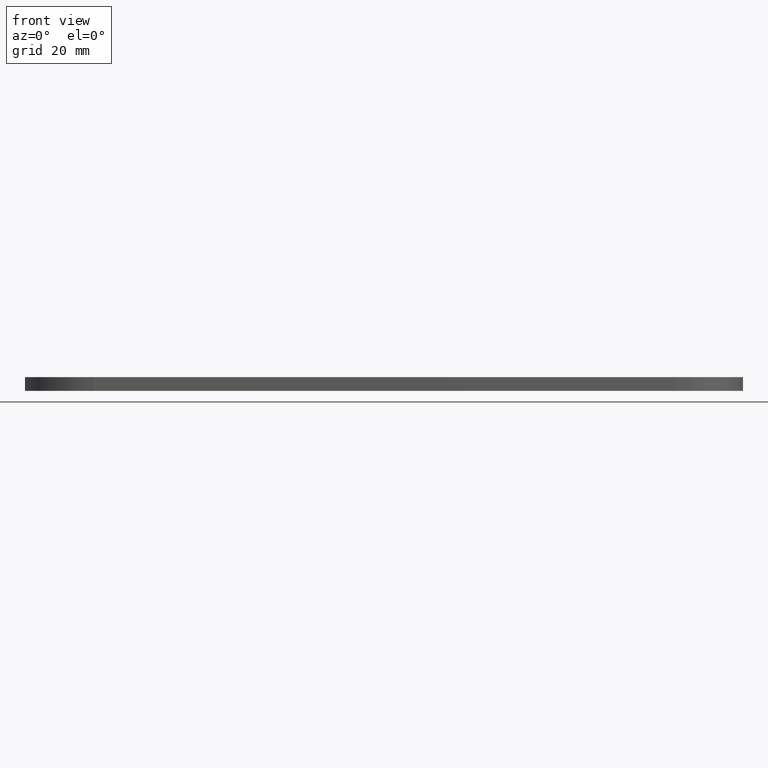
[diagram: clean part render]
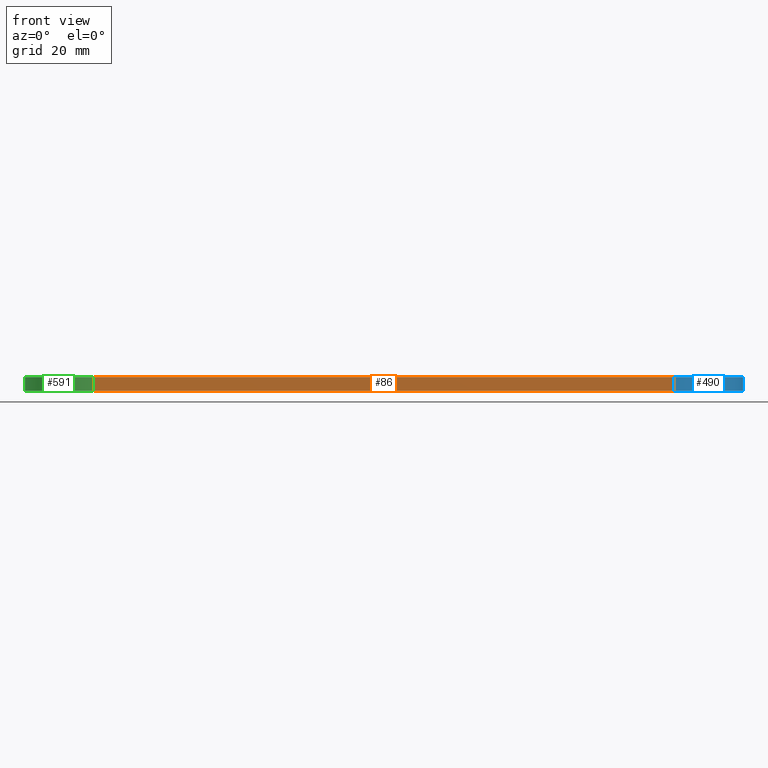
[diagram: same view with three faces highlighted in distinct colors, each labeled with its STEP entity id]
A machine part, front view with three faces highlighted in distinct colors.
Their STEP definitions:

[orange] entity #86 — the highlighted planar face has unit normal (0, -1, 0).
#8 = VECTOR ( 'NONE', #13, 1000.000000000000000 ) ;
#9 = LINE ( 'NONE', #656, #22 ) ;
#13 = DIRECTION ( 'NONE',  ( 1.000000000000000000, 1.817329355785226926E-16, 0.000000000000000000 ) ) ;
#22 = VECTOR ( 'NONE', #205, 1000.000000000000000 ) ;
#68 = CARTESIAN_POINT ( 'NONE',  ( -104.9999999999999858, -25.00000000000004263, 0.000000000000000000 ) ) ;
#86 = ADVANCED_FACE ( 'NONE', ( #230 ), #98, .T. ) ;
#98 = PLANE ( 'NONE',  #527 ) ;
#105 = ORIENTED_EDGE ( 'NONE', *, *, #502, .F. ) ;
#109 = VECTOR ( 'NONE', #182, 1000.000000000000000 ) ;
#166 = CARTESIAN_POINT ( 'NONE',  ( -104.9999999999999858, -25.00000000000004263, -5.000000000000000000 ) ) ;
#167 = VERTEX_POINT ( 'NONE', #166 ) ;
#170 = DIRECTION ( 'NONE',  ( 1.817329355785226926E-16, -1.000000000000000000, 0.000000000000000000 ) ) ;
#175 = ORIENTED_EDGE ( 'NONE', *, *, #790, .T. ) ;
#182 = DIRECTION ( 'NONE',  ( 0.000000000000000000, 0.000000000000000000, 1.000000000000000000 ) ) ;
#205 = DIRECTION ( 'NONE',  ( 0.000000000000000000, 0.000000000000000000, 1.000000000000000000 ) ) ;
#208 = LINE ( 'NONE', #533, #241 ) ;
#230 = FACE_OUTER_BOUND ( 'NONE', #471, .T. ) ;
#241 = VECTOR ( 'NONE', #473, 1000.000000000000000 ) ;
#305 = LINE ( 'NONE', #633, #109 ) ;
#307 = ORIENTED_EDGE ( 'NONE', *, *, #753, .F. ) ;
#315 = CARTESIAN_POINT ( 'NONE',  ( 104.9999999999999858, -25.00000000000000355, 0.000000000000000000 ) ) ;
#437 = EDGE_CURVE ( 'NONE', #706, #675, #9, .T. ) ;
#444 = CARTESIAN_POINT ( 'NONE',  ( 104.9999999999999858, -25.00000000000000355, -5.000000000000000000 ) ) ;
#448 = VERTEX_POINT ( 'NONE', #68 ) ;
#471 = EDGE_LOOP ( 'NONE', ( #105, #307, #175, #524 ) ) ;
#473 = DIRECTION ( 'NONE',  ( 1.000000000000000000, 1.817329355785226926E-16, 0.000000000000000000 ) ) ;
#502 = EDGE_CURVE ( 'NONE', #448, #675, #208, .T. ) ;
#524 = ORIENTED_EDGE ( 'NONE', *, *, #437, .T. ) ;
#527 = AXIS2_PLACEMENT_3D ( 'NONE', #622, #170, #810 ) ;
#533 = CARTESIAN_POINT ( 'NONE',  ( -104.9999999999999858, -25.00000000000004263, 0.000000000000000000 ) ) ;
#622 = CARTESIAN_POINT ( 'NONE',  ( -104.9999999999999858, -25.00000000000004263, -5.000000000000000000 ) ) ;
#633 = CARTESIAN_POINT ( 'NONE',  ( -104.9999999999999858, -25.00000000000004263, -5.000000000000000000 ) ) ;
#645 = LINE ( 'NONE', #725, #8 ) ;
#656 = CARTESIAN_POINT ( 'NONE',  ( 104.9999999999999858, -25.00000000000000355, -5.000000000000000000 ) ) ;
#675 = VERTEX_POINT ( 'NONE', #315 ) ;
#706 = VERTEX_POINT ( 'NONE', #444 ) ;
#725 = CARTESIAN_POINT ( 'NONE',  ( -104.9999999999999858, -25.00000000000004263, -5.000000000000000000 ) ) ;
#753 = EDGE_CURVE ( 'NONE', #167, #448, #305, .T. ) ;
#790 = EDGE_CURVE ( 'NONE', #167, #706, #645, .T. ) ;
#810 = DIRECTION ( 'NONE',  ( 1.000000000000000000, 1.817329355785226926E-16, 0.000000000000000000 ) ) ;

[blue] entity #490 — the highlighted cylindrical surface (partial cylindrical patch) has radius 25 mm, axis along (0, 0, 1).
#9 = LINE ( 'NONE', #656, #22 ) ;
#14 = FACE_OUTER_BOUND ( 'NONE', #701, .T. ) ;
#15 = ORIENTED_EDGE ( 'NONE', *, *, #465, .T. ) ;
#22 = VECTOR ( 'NONE', #205, 1000.000000000000000 ) ;
#54 = DIRECTION ( 'NONE',  ( 0.000000000000000000, 0.000000000000000000, 1.000000000000000000 ) ) ;
#56 = CARTESIAN_POINT ( 'NONE',  ( 104.9999999999999858, 3.857637417314161584E-14, 0.000000000000000000 ) ) ;
#70 = VERTEX_POINT ( 'NONE', #752 ) ;
#148 = CARTESIAN_POINT ( 'NONE',  ( 104.9999999999999858, 3.857637417314161584E-14, -5.000000000000000000 ) ) ;
#152 = AXIS2_PLACEMENT_3D ( 'NONE', #148, #202, #531 ) ;
#202 = DIRECTION ( 'NONE',  ( 0.000000000000000000, 0.000000000000000000, 1.000000000000000000 ) ) ;
#205 = DIRECTION ( 'NONE',  ( 0.000000000000000000, 0.000000000000000000, 1.000000000000000000 ) ) ;
#248 = DIRECTION ( 'NONE',  ( 0.000000000000000000, 0.000000000000000000, 1.000000000000000000 ) ) ;
#263 = ORIENTED_EDGE ( 'NONE', *, *, #290, .T. ) ;
#275 = CARTESIAN_POINT ( 'NONE',  ( 104.9999999999999858, 3.857637417314161584E-14, -5.000000000000000000 ) ) ;
#290 = EDGE_CURVE ( 'NONE', #436, #70, #450, .T. ) ;
#315 = CARTESIAN_POINT ( 'NONE',  ( 104.9999999999999858, -25.00000000000000355, 0.000000000000000000 ) ) ;
#318 = ORIENTED_EDGE ( 'NONE', *, *, #345, .F. ) ;
#324 = ORIENTED_EDGE ( 'NONE', *, *, #437, .F. ) ;
#333 = CIRCLE ( 'NONE', #809, 25.00000000000004974 ) ;
#345 = EDGE_CURVE ( 'NONE', #675, #70, #333, .T. ) ;
#347 = CIRCLE ( 'NONE', #152, 25.00000000000004974 ) ;
#381 = CARTESIAN_POINT ( 'NONE',  ( 130.0000000000000284, 3.857637417314161584E-14, -5.000000000000000000 ) ) ;
#401 = DIRECTION ( 'NONE',  ( 0.000000000000000000, 0.000000000000000000, 1.000000000000000000 ) ) ;
#436 = VERTEX_POINT ( 'NONE', #719 ) ;
#437 = EDGE_CURVE ( 'NONE', #706, #675, #9, .T. ) ;
#444 = CARTESIAN_POINT ( 'NONE',  ( 104.9999999999999858, -25.00000000000000355, -5.000000000000000000 ) ) ;
#450 = LINE ( 'NONE', #381, #673 ) ;
#465 = EDGE_CURVE ( 'NONE', #706, #436, #347, .T. ) ;
#490 = ADVANCED_FACE ( 'NONE', ( #14 ), #793, .T. ) ;
#531 = DIRECTION ( 'NONE',  ( 1.000000000000000000, 0.000000000000000000, 0.000000000000000000 ) ) ;
#573 = DIRECTION ( 'NONE',  ( 1.000000000000000000, 0.000000000000000000, 0.000000000000000000 ) ) ;
#618 = AXIS2_PLACEMENT_3D ( 'NONE', #275, #401, #663 ) ;
#656 = CARTESIAN_POINT ( 'NONE',  ( 104.9999999999999858, -25.00000000000000355, -5.000000000000000000 ) ) ;
#663 = DIRECTION ( 'NONE',  ( 1.000000000000000000, 0.000000000000000000, 0.000000000000000000 ) ) ;
#673 = VECTOR ( 'NONE', #248, 1000.000000000000000 ) ;
#675 = VERTEX_POINT ( 'NONE', #315 ) ;
#701 = EDGE_LOOP ( 'NONE', ( #15, #263, #318, #324 ) ) ;
#706 = VERTEX_POINT ( 'NONE', #444 ) ;
#719 = CARTESIAN_POINT ( 'NONE',  ( 130.0000000000000284, 3.857637417314161584E-14, -5.000000000000000000 ) ) ;
#752 = CARTESIAN_POINT ( 'NONE',  ( 130.0000000000000284, 3.857637417314161584E-14, 0.000000000000000000 ) ) ;
#793 = CYLINDRICAL_SURFACE ( 'NONE', #618, 25.00000000000004974 ) ;
#809 = AXIS2_PLACEMENT_3D ( 'NONE', #56, #54, #573 ) ;

[green] entity #591 — the highlighted cylindrical surface (partial cylindrical patch) has radius 25 mm, axis along (0, 0, 1).
#4 = AXIS2_PLACEMENT_3D ( 'NONE', #198, #385, #831 ) ;
#27 = DIRECTION ( 'NONE',  ( 1.000000000000000000, 0.000000000000000000, 0.000000000000000000 ) ) ;
#49 = EDGE_CURVE ( 'NONE', #595, #448, #433, .T. ) ;
#68 = CARTESIAN_POINT ( 'NONE',  ( -104.9999999999999858, -25.00000000000004263, 0.000000000000000000 ) ) ;
#109 = VECTOR ( 'NONE', #182, 1000.000000000000000 ) ;
#114 = CARTESIAN_POINT ( 'NONE',  ( -104.9999999999999858, 25.00000000000004263, -5.000000000000000000 ) ) ;
#166 = CARTESIAN_POINT ( 'NONE',  ( -104.9999999999999858, -25.00000000000004263, -5.000000000000000000 ) ) ;
#167 = VERTEX_POINT ( 'NONE', #166 ) ;
#182 = DIRECTION ( 'NONE',  ( 0.000000000000000000, 0.000000000000000000, 1.000000000000000000 ) ) ;
#195 = DIRECTION ( 'NONE',  ( 0.000000000000000000, 0.000000000000000000, 1.000000000000000000 ) ) ;
#198 = CARTESIAN_POINT ( 'NONE',  ( -104.9999999999999858, 0.000000000000000000, -5.000000000000000000 ) ) ;
#215 = ORIENTED_EDGE ( 'NONE', *, *, #49, .F. ) ;
#220 = DIRECTION ( 'NONE',  ( 0.000000000000000000, 0.000000000000000000, 1.000000000000000000 ) ) ;
#221 = EDGE_CURVE ( 'NONE', #737, #595, #769, .T. ) ;
#256 = CARTESIAN_POINT ( 'NONE',  ( -104.9999999999999858, 25.00000000000004263, -5.000000000000000000 ) ) ;
#274 = EDGE_CURVE ( 'NONE', #737, #167, #445, .T. ) ;
#288 = ORIENTED_EDGE ( 'NONE', *, *, #274, .T. ) ;
#305 = LINE ( 'NONE', #633, #109 ) ;
#362 = DIRECTION ( 'NONE',  ( 1.000000000000000000, 0.000000000000000000, 0.000000000000000000 ) ) ;
#385 = DIRECTION ( 'NONE',  ( 0.000000000000000000, 0.000000000000000000, 1.000000000000000000 ) ) ;
#422 = DIRECTION ( 'NONE',  ( 0.000000000000000000, 0.000000000000000000, 1.000000000000000000 ) ) ;
#433 = CIRCLE ( 'NONE', #743, 25.00000000000004974 ) ;
#445 = CIRCLE ( 'NONE', #4, 25.00000000000004974 ) ;
#448 = VERTEX_POINT ( 'NONE', #68 ) ;
#512 = AXIS2_PLACEMENT_3D ( 'NONE', #558, #422, #27 ) ;
#558 = CARTESIAN_POINT ( 'NONE',  ( -104.9999999999999858, 0.000000000000000000, -5.000000000000000000 ) ) ;
#581 = VECTOR ( 'NONE', #195, 1000.000000000000000 ) ;
#591 = ADVANCED_FACE ( 'NONE', ( #751 ), #610, .T. ) ;
#595 = VERTEX_POINT ( 'NONE', #621 ) ;
#610 = CYLINDRICAL_SURFACE ( 'NONE', #512, 25.00000000000004974 ) ;
#613 = ORIENTED_EDGE ( 'NONE', *, *, #753, .T. ) ;
#621 = CARTESIAN_POINT ( 'NONE',  ( -104.9999999999999858, 25.00000000000004263, 0.000000000000000000 ) ) ;
#633 = CARTESIAN_POINT ( 'NONE',  ( -104.9999999999999858, -25.00000000000004263, -5.000000000000000000 ) ) ;
#737 = VERTEX_POINT ( 'NONE', #256 ) ;
#743 = AXIS2_PLACEMENT_3D ( 'NONE', #749, #220, #362 ) ;
#749 = CARTESIAN_POINT ( 'NONE',  ( -104.9999999999999858, 0.000000000000000000, 0.000000000000000000 ) ) ;
#751 = FACE_OUTER_BOUND ( 'NONE', #766, .T. ) ;
#753 = EDGE_CURVE ( 'NONE', #167, #448, #305, .T. ) ;
#766 = EDGE_LOOP ( 'NONE', ( #215, #794, #288, #613 ) ) ;
#769 = LINE ( 'NONE', #114, #581 ) ;
#794 = ORIENTED_EDGE ( 'NONE', *, *, #221, .F. ) ;
#831 = DIRECTION ( 'NONE',  ( 1.000000000000000000, 0.000000000000000000, 0.000000000000000000 ) ) ;